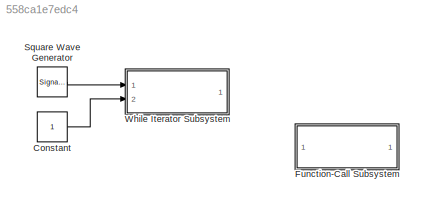
MODEL slx_558ca1e7edc4
KIND model
CONFIG AbsTol = auto
CONFIG EnableMultiTasking = off
CONFIG FixedStep = auto
CONFIG MaxStep = auto
CONFIG MinStep = auto
CONFIG RelTol = 1e-3
CONFIG SampleTimeConstraint = Unconstrained
CONFIG SolverName = FixedStepAuto
CONFIG StartTime = 0.0
CONFIG StopTime = 500
BLOCK [Constant] Constant
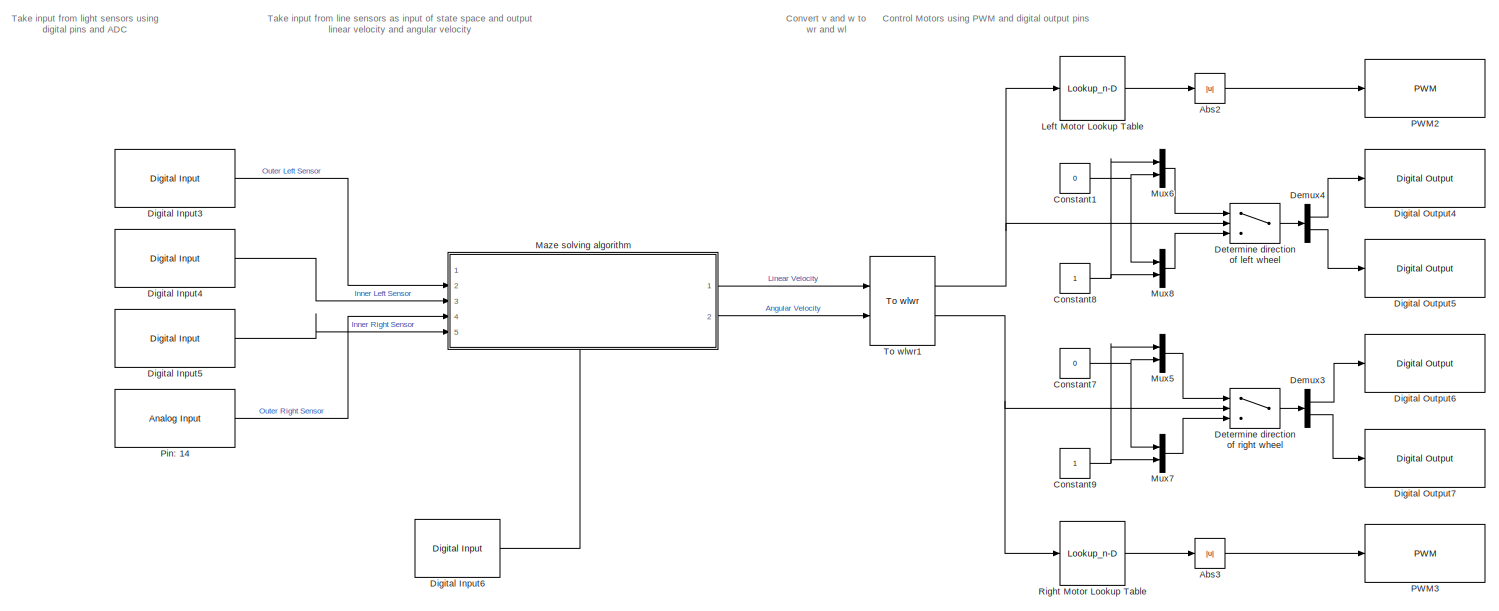
[diagram: Function-Call Subsystem - part 1/2, right side, full height]
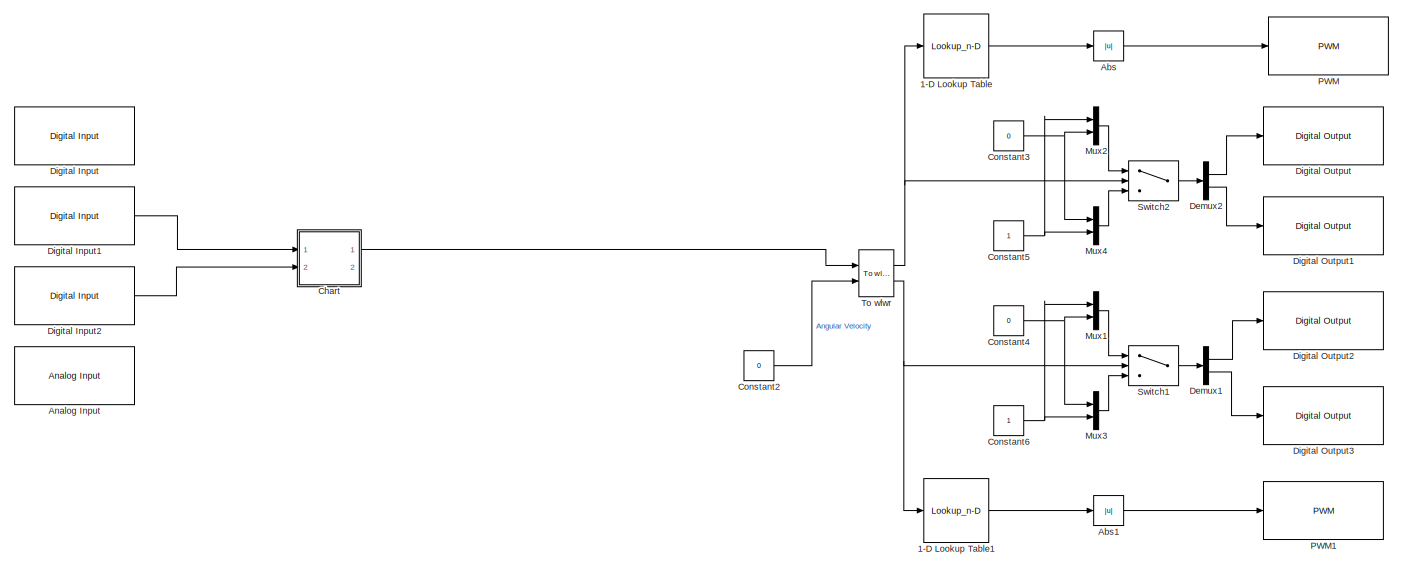
[diagram: Function-Call Subsystem - part 2/2, left side, full height]
BLOCK [SubSystem] Function-Call Subsystem
  Ports = []
  RequestExecContextInheritance = off
  TreatAsAtomicUnit = on
BLOCK [Lookup_n-D] Function-Call Subsystem/1-D Lookup Table
  BreakpointsForDimension1 = WheelSpeed
  Commented = on
  InputPortMap = u0
  InternalRulePriority = Speed
  NumberOfTableDimensions = 1
  Ports = [1, 1]
  RndMeth = Simplest
  Table = InputPWM
BLOCK [Lookup_n-D] Function-Call Subsystem/1-D Lookup Table1
  BreakpointsForDimension1 = WheelSpeed
  Commented = on
  InputPortMap = u0
  InternalRulePriority = Speed
  NumberOfTableDimensions = 1
  Ports = [1, 1]
  RndMeth = Simplest
  Table = InputPWM
BLOCK [Abs] Function-Call Subsystem/Abs
  Commented = on
  SaturateOnIntegerOverflow = off
BLOCK [Abs] Function-Call Subsystem/Abs1
  Commented = on
  SaturateOnIntegerOverflow = off
BLOCK [Abs] Function-Call Subsystem/Abs2
  SaturateOnIntegerOverflow = off
BLOCK [Abs] Function-Call Subsystem/Abs3
  SaturateOnIntegerOverflow = off
BLOCK [Reference] Function-Call Subsystem/Analog Input  REF=arduinolib/Analog Input
  Commented = on
  Ports = [0, 1]
  SourceBlock = arduinolib/Analog Input
  SourceProductBaseCode = ARDUINO
  SourceType = Arduino Analog Input
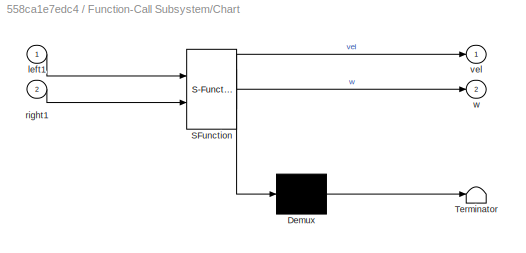
BLOCK [SubSystem] Function-Call Subsystem/Chart
  Commented = on
  ErrorFcn = Stateflow.Translate.translate
  PermitHierarchicalResolution = ExplicitOnly
  Ports = [2, 2]
  RequestExecContextInheritance = off
  SFBlockType = Chart
  TreatAsAtomicUnit = on
BLOCK [Demux] Function-Call Subsystem/Chart/ Demux 
  Outputs = 1
  Ports = [1, 1]
BLOCK [S-Function] Function-Call Subsystem/Chart/ SFunction 
  EnableBusSupport = on
  FunctionName = sf_sfun
  PortCounts = [2 3]
  Ports = [2, 3]
  SFcnIsStateOwnerBlock = off
  SFunctionDeploymentMode = off
  Tag = Stateflow S-Function 3
BLOCK [Terminator] Function-Call Subsystem/Chart/ Terminator 
BLOCK [Inport] Function-Call Subsystem/Chart/left1
BLOCK [Inport] Function-Call Subsystem/Chart/right1
  Port = 2
BLOCK [Outport] Function-Call Subsystem/Chart/vel
BLOCK [Outport] Function-Call Subsystem/Chart/w
  Port = 2
BLOCK [Constant] Function-Call Subsystem/Constant1
  Value = 0
BLOCK [Constant] Function-Call Subsystem/Constant2
  Commented = on
  Value = 0
BLOCK [Constant] Function-Call Subsystem/Constant3
  Commented = on
  Value = 0
BLOCK [Constant] Function-Call Subsystem/Constant4
  Commented = on
  Value = 0
BLOCK [Constant] Function-Call Subsystem/Constant5
  Commented = on
BLOCK [Constant] Function-Call Subsystem/Constant6
  Commented = on
BLOCK [Constant] Function-Call Subsystem/Constant7
  Value = 0
BLOCK [Constant] Function-Call Subsystem/Constant8
BLOCK [Constant] Function-Call Subsystem/Constant9
BLOCK [Demux] Function-Call Subsystem/Demux1
  Commented = on
  Outputs = 2
  Ports = [1, 2]
BLOCK [Demux] Function-Call Subsystem/Demux2
  Commented = on
  Outputs = 2
  Ports = [1, 2]
BLOCK [Demux] Function-Call Subsystem/Demux3
  Outputs = 2
  Ports = [1, 2]
BLOCK [Demux] Function-Call Subsystem/Demux4
  Outputs = 2
  Ports = [1, 2]
BLOCK [Switch] Function-Call Subsystem/Determine direction of left wheel
  Criteria = u2 > Threshold
  InputSameDT = off
  SaturateOnIntegerOverflow = off
BLOCK [Switch] Function-Call Subsystem/Determine direction of right wheel
  Criteria = u2 > Threshold
  InputSameDT = off
  SaturateOnIntegerOverflow = off
BLOCK [Reference] Function-Call Subsystem/Digital Input  REF=arduinolib/Digital Input
  Commented = on
  Ports = [0, 1]
  SourceBlock = arduinolib/Digital Input
  SourceProductBaseCode = ARDUINO
  SourceType = Arduino Digital Input
BLOCK [Reference] Function-Call Subsystem/Digital Input1  REF=arduinolib/Digital Input
  Commented = on
  Ports = [0, 1]
  SourceBlock = arduinolib/Digital Input
  SourceProductBaseCode = ARDUINO
  SourceType = Arduino Digital Input
BLOCK [Reference] Function-Call Subsystem/Digital Input2  REF=arduinolib/Digital Input
  Commented = on
  Ports = [0, 1]
  SourceBlock = arduinolib/Digital Input
  SourceProductBaseCode = ARDUINO
  SourceType = Arduino Digital Input
BLOCK [Reference] Function-Call Subsystem/Digital Input3  REF=arduinolib/Digital Input
  Ports = [0, 1]
  SourceBlock = arduinolib/Digital Input
  SourceProductBaseCode = ARDUINO
  SourceType = Arduino Digital Input
BLOCK [Reference] Function-Call Subsystem/Digital Input4  REF=arduinolib/Digital Input
  Ports = [0, 1]
  SourceBlock = arduinolib/Digital Input
  SourceProductBaseCode = ARDUINO
  SourceType = Arduino Digital Input
BLOCK [Reference] Function-Call Subsystem/Digital Input5  REF=arduinolib/Digital Input
  Ports = [0, 1]
  SourceBlock = arduinolib/Digital Input
  SourceProductBaseCode = ARDUINO
  SourceType = Arduino Digital Input
BLOCK [Reference] Function-Call Subsystem/Digital Input6  REF=arduinolib/Digital Input
  Ports = [0, 1]
  SourceBlock = arduinolib/Digital Input
  SourceProductBaseCode = ARDUINO
  SourceType = Arduino Digital Input
BLOCK [Reference] Function-Call Subsystem/Digital Output  REF=arduinolib/Digital Output
  Commented = on
  Ports = [1]
  SourceBlock = arduinolib/Digital Output
  SourceProductBaseCode = ARDUINO
  SourceType = Arduino Digital Output
BLOCK [Reference] Function-Call Subsystem/Digital Output1  REF=arduinolib/Digital Output
  Commented = on
  Ports = [1]
  SourceBlock = arduinolib/Digital Output
  SourceProductBaseCode = ARDUINO
  SourceType = Arduino Digital Output
BLOCK [Reference] Function-Call Subsystem/Digital Output2  REF=arduinolib/Digital Output
  Commented = on
  Ports = [1]
  SourceBlock = arduinolib/Digital Output
  SourceProductBaseCode = ARDUINO
  SourceType = Arduino Digital Output
BLOCK [Reference] Function-Call Subsystem/Digital Output3  REF=arduinolib/Digital Output
  Commented = on
  Ports = [1]
  SourceBlock = arduinolib/Digital Output
  SourceProductBaseCode = ARDUINO
  SourceType = Arduino Digital Output
BLOCK [Reference] Function-Call Subsystem/Digital Output4  REF=arduinolib/Digital Output
  Ports = [1]
  SourceBlock = arduinolib/Digital Output
  SourceProductBaseCode = ARDUINO
  SourceType = Arduino Digital Output
BLOCK [Reference] Function-Call Subsystem/Digital Output5  REF=arduinolib/Digital Output
  Ports = [1]
  SourceBlock = arduinolib/Digital Output
  SourceProductBaseCode = ARDUINO
  SourceType = Arduino Digital Output
BLOCK [Reference] Function-Call Subsystem/Digital Output6  REF=arduinolib/Digital Output
  Ports = [1]
  SourceBlock = arduinolib/Digital Output
  SourceProductBaseCode = ARDUINO
  SourceType = Arduino Digital Output
BLOCK [Reference] Function-Call Subsystem/Digital Output7  REF=arduinolib/Digital Output
  Ports = [1]
  SourceBlock = arduinolib/Digital Output
  SourceProductBaseCode = ARDUINO
  SourceType = Arduino Digital Output
BLOCK [Lookup_n-D] Function-Call Subsystem/Left Motor Lookup Table
  BreakpointsForDimension1 = WheelSpeed
  InputPortMap = u0
  InternalRulePriority = Speed
  NumberOfTableDimensions = 1
  Ports = [1, 1]
  RndMeth = Simplest
  Table = InputPWM
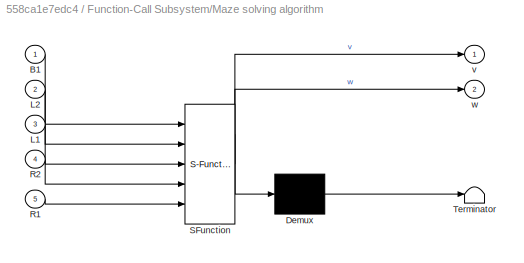
BLOCK [SubSystem] Function-Call Subsystem/Maze solving algorithm
  ErrorFcn = Stateflow.Translate.translate
  NameLocation = top
  PermitHierarchicalResolution = ExplicitOnly
  PortSchema = {"entries":[{"content":{"sides":[{"content":{"connectorIds":["In2","In3","In5","In4"]},"type":"ConnectorPlacement.EquallySpacedRectSide","uuid":"aba539e4-9d8a-47f4-8547-39721ab9b9f4"},{"content":{"connectorIds":["Out1","Out2"],"side":"RIGHT"},"type":"ConnectorPlacement.EquallySpacedRectSide","uuid":"a712b855-a14f-4e8e-9130-f7ec9592e6f1"},{"content":{"connectorIds":[],"side":"TOP"},"type":"Connecto...<+414ch>
  Ports = [5, 2]
  RequestExecContextInheritance = off
  SFBlockType = Chart
  TreatAsAtomicUnit = on
BLOCK [Demux] Function-Call Subsystem/Maze solving algorithm/ Demux 
  Outputs = 1
  Ports = [1, 1]
BLOCK [S-Function] Function-Call Subsystem/Maze solving algorithm/ SFunction 
  EnableBusSupport = on
  FunctionName = sf_sfun
  PortCounts = [5 3]
  Ports = [5, 3]
  SFcnIsStateOwnerBlock = off
  SFunctionDeploymentMode = off
  Tag = Stateflow S-Function 1
BLOCK [Terminator] Function-Call Subsystem/Maze solving algorithm/ Terminator 
BLOCK [Inport] Function-Call Subsystem/Maze solving algorithm/B1
BLOCK [Inport] Function-Call Subsystem/Maze solving algorithm/L1
  Port = 3
BLOCK [Inport] Function-Call Subsystem/Maze solving algorithm/L2
  Port = 2
BLOCK [Inport] Function-Call Subsystem/Maze solving algorithm/R1
  Port = 5
BLOCK [Inport] Function-Call Subsystem/Maze solving algorithm/R2
  Port = 4
BLOCK [Outport] Function-Call Subsystem/Maze solving algorithm/v
BLOCK [Outport] Function-Call Subsystem/Maze solving algorithm/w
  Port = 2
BLOCK [Mux] Function-Call Subsystem/Mux1
  Commented = on
  DisplayOption = bar
  Inputs = 2
  Ports = [2, 1]
BLOCK [Mux] Function-Call Subsystem/Mux2
  Commented = on
  DisplayOption = bar
  Inputs = 2
  Ports = [2, 1]
BLOCK [Mux] Function-Call Subsystem/Mux3
  Commented = on
  DisplayOption = bar
  Inputs = 2
  Ports = [2, 1]
BLOCK [Mux] Function-Call Subsystem/Mux4
  Commented = on
  DisplayOption = bar
  Inputs = 2
  Ports = [2, 1]
BLOCK [Mux] Function-Call Subsystem/Mux5
  DisplayOption = bar
  Inputs = 2
  Ports = [2, 1]
BLOCK [Mux] Function-Call Subsystem/Mux6
  DisplayOption = bar
  Inputs = 2
  Ports = [2, 1]
BLOCK [Mux] Function-Call Subsystem/Mux7
  DisplayOption = bar
  Inputs = 2
  Ports = [2, 1]
BLOCK [Mux] Function-Call Subsystem/Mux8
  DisplayOption = bar
  Inputs = 2
  Ports = [2, 1]
BLOCK [Reference] Function-Call Subsystem/PWM  REF=arduinolib/PWM
  Commented = on
  Ports = [1]
  SourceBlock = arduinolib/PWM
  SourceProductBaseCode = ARDUINO
  SourceType = Arduino PWM
BLOCK [Reference] Function-Call Subsystem/PWM1  REF=arduinolib/PWM
  Commented = on
  Ports = [1]
  SourceBlock = arduinolib/PWM
  SourceProductBaseCode = ARDUINO
  SourceType = Arduino PWM
BLOCK [Reference] Function-Call Subsystem/PWM2  REF=arduinolib/PWM
  Ports = [1]
  SourceBlock = arduinolib/PWM
  SourceProductBaseCode = ARDUINO
  SourceType = Arduino PWM
BLOCK [Reference] Function-Call Subsystem/PWM3  REF=arduinolib/PWM
  Ports = [1]
  SourceBlock = arduinolib/PWM
  SourceProductBaseCode = ARDUINO
  SourceType = Arduino PWM
BLOCK [Reference] Function-Call Subsystem/Pin: 14  REF=arduinolib/Analog Input
  Ports = [0, 1]
  SourceBlock = arduinolib/Analog Input
  SourceProductBaseCode = ARDUINO
  SourceType = Arduino Analog Input
BLOCK [Lookup_n-D] Function-Call Subsystem/Right Motor Lookup Table 
  BreakpointsForDimension1 = WheelSpeed
  InputPortMap = u0
  InternalRulePriority = Speed
  NumberOfTableDimensions = 1
  Ports = [1, 1]
  RndMeth = Simplest
  Table = InputPWM
BLOCK [Switch] Function-Call Subsystem/Switch1
  Commented = on
  Criteria = u2 > Threshold
  InputSameDT = off
  SaturateOnIntegerOverflow = off
BLOCK [Switch] Function-Call Subsystem/Switch2
  Commented = on
  Criteria = u2 > Threshold
  InputSameDT = off
  SaturateOnIntegerOverflow = off
BLOCK [Reference] Function-Call Subsystem/To wlwr  REF=mobileRoboticsTrainingLib/To wlwr
  Commented = on
  Ports = [2, 2]
  SourceBlock = mobileRoboticsTrainingLib/To wlwr
  SourceProductName = Mobile Robotics Training Library
  SourceType = To wlwr
BLOCK [Reference] Function-Call Subsystem/To wlwr1  REF=mobileRoboticsTrainingLib/To wlwr
  Ports = [2, 2]
  SourceBlock = mobileRoboticsTrainingLib/To wlwr
  SourceProductName = Mobile Robotics Training Library
  SourceType = To wlwr
BLOCK [SignalGenerator] Square Wave Generator
  Ports = [0, 1]
  Units = rad/sec
  WaveForm = square
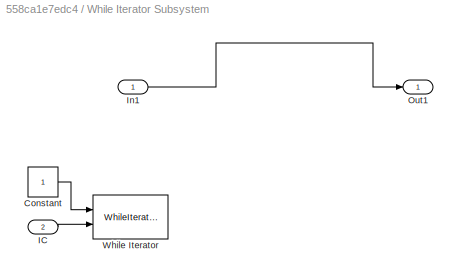
BLOCK [SubSystem] While Iterator Subsystem
  Ports = [2, 1]
  RequestExecContextInheritance = off
  TreatAsAtomicUnit = on
BLOCK [Constant] While Iterator Subsystem/Constant
BLOCK [Inport] While Iterator Subsystem/IC
  Port = 2
BLOCK [Inport] While Iterator Subsystem/In1
BLOCK [Outport] While Iterator Subsystem/Out1
BLOCK [WhileIterator] While Iterator Subsystem/While Iterator
  Ports = [2]
ANNOTATION Function-Call Subsystem: Control Motors using PWM and digital output pins
ANNOTATION Function-Call Subsystem: Convert v and w to wr and wl
ANNOTATION Function-Call Subsystem: Take input from light sensors using digital pins and ADC
ANNOTATION Function-Call Subsystem: Take input from line sensors as input of state space and output linear velocity and angular velocity
LINE Constant:1 -> While Iterator Subsystem:2
LINE Function-Call Subsystem/1-D Lookup Table1:1 -> Function-Call Subsystem/Abs1:1
LINE Function-Call Subsystem/1-D Lookup Table:1 -> Function-Call Subsystem/Abs:1
LINE Function-Call Subsystem/Abs1:1 -> Function-Call Subsystem/PWM1:1
LINE Function-Call Subsystem/Abs2:1 -> Function-Call Subsystem/PWM2:1
LINE Function-Call Subsystem/Abs3:1 -> Function-Call Subsystem/PWM3:1
LINE Function-Call Subsystem/Abs:1 -> Function-Call Subsystem/PWM:1
LINE Function-Call Subsystem/Chart:1 -> Function-Call Subsystem/To wlwr:1
NET Function-Call Subsystem/Constant1:1 -> Function-Call Subsystem/Mux6:2, Function-Call Subsystem/Mux8:1
LINE Function-Call Subsystem/Constant2:1 -> Function-Call Subsystem/To wlwr:2
NET Function-Call Subsystem/Constant3:1 -> Function-Call Subsystem/Mux2:2, Function-Call Subsystem/Mux4:1
NET Function-Call Subsystem/Constant4:1 -> Function-Call Subsystem/Mux1:2, Function-Call Subsystem/Mux3:1
NET Function-Call Subsystem/Constant5:1 -> Function-Call Subsystem/Mux2:1, Function-Call Subsystem/Mux4:2
NET Function-Call Subsystem/Constant6:1 -> Function-Call Subsystem/Mux1:1, Function-Call Subsystem/Mux3:2
NET Function-Call Subsystem/Constant7:1 -> Function-Call Subsystem/Mux5:2, Function-Call Subsystem/Mux7:1
NET Function-Call Subsystem/Constant8:1 -> Function-Call Subsystem/Mux6:1, Function-Call Subsystem/Mux8:2
NET Function-Call Subsystem/Constant9:1 -> Function-Call Subsystem/Mux5:1, Function-Call Subsystem/Mux7:2
LINE Function-Call Subsystem/Demux1:1 -> Function-Call Subsystem/Digital Output2:1
LINE Function-Call Subsystem/Demux1:2 -> Function-Call Subsystem/Digital Output3:1
LINE Function-Call Subsystem/Demux2:1 -> Function-Call Subsystem/Digital Output:1
LINE Function-Call Subsystem/Demux2:2 -> Function-Call Subsystem/Digital Output1:1
LINE Function-Call Subsystem/Demux3:1 -> Function-Call Subsystem/Digital Output6:1
LINE Function-Call Subsystem/Demux3:2 -> Function-Call Subsystem/Digital Output7:1
LINE Function-Call Subsystem/Demux4:1 -> Function-Call Subsystem/Digital Output4:1
LINE Function-Call Subsystem/Demux4:2 -> Function-Call Subsystem/Digital Output5:1
LINE Function-Call Subsystem/Determine direction of left wheel:1 -> Function-Call Subsystem/Demux4:1
LINE Function-Call Subsystem/Determine direction of right wheel:1 -> Function-Call Subsystem/Demux3:1
LINE Function-Call Subsystem/Digital Input1:1 -> Function-Call Subsystem/Chart:1
LINE Function-Call Subsystem/Digital Input2:1 -> Function-Call Subsystem/Chart:2
LINE Function-Call Subsystem/Digital Input3:1 -> Function-Call Subsystem/Maze solving algorithm:2
LINE Function-Call Subsystem/Digital Input4:1 -> Function-Call Subsystem/Maze solving algorithm:3
LINE Function-Call Subsystem/Digital Input5:1 -> Function-Call Subsystem/Maze solving algorithm:5
LINE Function-Call Subsystem/Digital Input6:1 -> Function-Call Subsystem/Maze solving algorithm:1
LINE Function-Call Subsystem/Left Motor Lookup Table:1 -> Function-Call Subsystem/Abs2:1
LINE Function-Call Subsystem/Maze solving algorithm:1 -> Function-Call Subsystem/To wlwr1:1
LINE Function-Call Subsystem/Maze solving algorithm:2 -> Function-Call Subsystem/To wlwr1:2
LINE Function-Call Subsystem/Mux1:1 -> Function-Call Subsystem/Switch1:1
LINE Function-Call Subsystem/Mux2:1 -> Function-Call Subsystem/Switch2:1
LINE Function-Call Subsystem/Mux3:1 -> Function-Call Subsystem/Switch1:3
LINE Function-Call Subsystem/Mux4:1 -> Function-Call Subsystem/Switch2:3
LINE Function-Call Subsystem/Mux5:1 -> Function-Call Subsystem/Determine direction of right wheel:1
LINE Function-Call Subsystem/Mux6:1 -> Function-Call Subsystem/Determine direction of left wheel:1
LINE Function-Call Subsystem/Mux7:1 -> Function-Call Subsystem/Determine direction of right wheel:3
LINE Function-Call Subsystem/Mux8:1 -> Function-Call Subsystem/Determine direction of left wheel:3
LINE Function-Call Subsystem/Pin: 14:1 -> Function-Call Subsystem/Maze solving algorithm:4
LINE Function-Call Subsystem/Right Motor Lookup Table :1 -> Function-Call Subsystem/Abs3:1
LINE Function-Call Subsystem/Switch1:1 -> Function-Call Subsystem/Demux1:1
LINE Function-Call Subsystem/Switch2:1 -> Function-Call Subsystem/Demux2:1
NET Function-Call Subsystem/To wlwr1:1 -> Function-Call Subsystem/Determine direction of left wheel:2, Function-Call Subsystem/Left Motor Lookup Table:1
NET Function-Call Subsystem/To wlwr1:2 -> Function-Call Subsystem/Determine direction of right wheel:2, Function-Call Subsystem/Right Motor Lookup Table :1
NET Function-Call Subsystem/To wlwr:1 -> Function-Call Subsystem/1-D Lookup Table:1, Function-Call Subsystem/Switch2:2
NET Function-Call Subsystem/To wlwr:2 -> Function-Call Subsystem/1-D Lookup Table1:1, Function-Call Subsystem/Switch1:2
LINE Square Wave Generator:1 -> While Iterator Subsystem:1
LINE While Iterator Subsystem/Constant:1 -> While Iterator Subsystem/While Iterator:1
LINE While Iterator Subsystem/IC:1 -> While Iterator Subsystem/While Iterator:2
LINE While Iterator Subsystem/In1:1 -> While Iterator Subsystem/Out1:1
note: NET lines group one-source signal fan-out (src -> all destinations, sorted); 1:1 wires keep LINE
CHART Function-Call
Subsystem/Maze solving algorithm states=23 transitions=36
  STATE_LABEL 'AdjustRight\nentry:\nv = 0;\nw = 1.4;\n'
  STATE_LABEL 'TurnAround\nentry:\nv = 0;\n'
  STATE_LABEL 'Turn\nentry:\nw = 1.2;'
  STATE_LABEL 'Stop1\nentry:\nw = 0;\ndone = 1;'
  STATE_LABEL '[R1 == 0]'
  STATE_LABEL 'Turn\nentry:\nw = 1.2;'
  STATE_LABEL 'Stop1\nentry:\nw = 0;\ndone = 1;'
  STATE_LABEL 'AdjustLeft\nentry:\nv = 0;\nw = -1.4;\n'
  STATE_LABEL 'Wait\nentry:\nv = 0;\nw = 0;\n'
  STATE_LABEL 'DeadReckoning\nentry:\nv = 0.1;\nw = 0.05;\n'
  STATE_LABEL 'Start\nentry:\nv = 0.1;\nw = 0.06;\ndone = 0;'
  STATE_LABEL 'TurnRight1\nentry:\ndone = 0;\n'
  STATE_LABEL 'Turn\nentry:\nw = 1.2;'
  STATE_LABEL 'Check\nentry:\nw = 1.2;\ncheck = 1;\nexit:\ncheck = 0;\n'
  STATE_LABEL 'TurnAgain\nentry:\nw = 1.2;'
  STATE_LABEL 'Stop\nentry:\nw = 0;\ndone = 1;'
  STATE_LABEL '[after(0.3,sec)]'
  STATE_LABEL '[after(0.5,sec)]'
  STATE_LABEL '[R1 == 0]'
  STATE_LABEL 'Turn\nentry:\nw = 1.2;'
  STATE_LABEL 'Check\nentry:\nw = 1.2;\ncheck = 1;\nexit:\ncheck = 0;\n'
  STATE_LABEL 'TurnAgain\nentry:\nw = 1.2;'
  STATE_LABEL 'Stop\nentry:\nw = 0;\ndone = 1;'
  STATE_LABEL 'TurnLeft\nentry:\ndone = 0;\n'
  STATE_LABEL 'Turn\nentry:\nw = -1.2;'
  STATE_LABEL 'Stop\nentry:\nw = 0;\ndone = 1;'
  STATE_LABEL '[~R1||~L1]'
  STATE_LABEL 'Turn\nentry:\nw = -1.2;'
  STATE_LABEL 'Stop\nentry:\nw = 0;\ndone = 1;'
  STATE_LABEL 'Forward\n\n'
  STATE_LABEL 'Move\nentry:\nv = 0.1;\nw = 0;'
  STATE_LABEL 'Stop\nentry:\nv = 0;\nw = 0;\ndone = 1;'
  STATE_LABEL '[after(0.1,sec)]'
  STATE_LABEL 'Move\nentry:\nv = 0.1;\nw = 0;'
  STATE_LABEL 'Stop\nentry:\nv = 0;\nw = 0;\ndone = 1;'
  STATE_LABEL 'ForwardMore\nentry:\ndone = 0;\n'
  STATE_LABEL 'Move\nentry:\nv = 0.12;\nw = 0.06;\n'
  STATE_LABEL 'Stop\nentry:\nv = 0;\nw = 0;\ndone = 1;'
  STATE_LABEL '[after(0.8,sec)]'
  STATE_LABEL 'Move\nentry:\nv = 0.12;\nw = 0.06;\n'
CHART Function-Call
Subsystem/Chart states=4 transitions=6
  STATE_LABEL 'Move\nentry:\nvel = 0;\nw = 0;'
  STATE_LABEL 'AdjustLeft\nentry:\nvel = 0.1;\ndeg = 5;\n'
  STATE_LABEL 'Start\nentry:\nvel = 0.1;'
  STATE_LABEL 'AdjustRight1\nentry:\nvel = 0.1;\ndeg = -5;\n'
CHART  states=0 transitions=0
CHART  states=0 transitions=0
